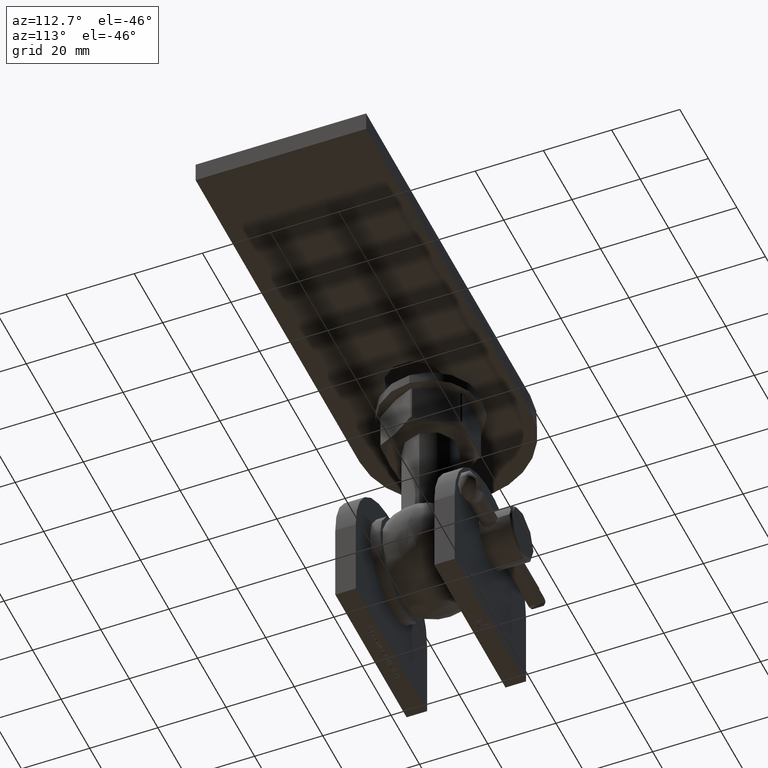
[diagram: clean part render]
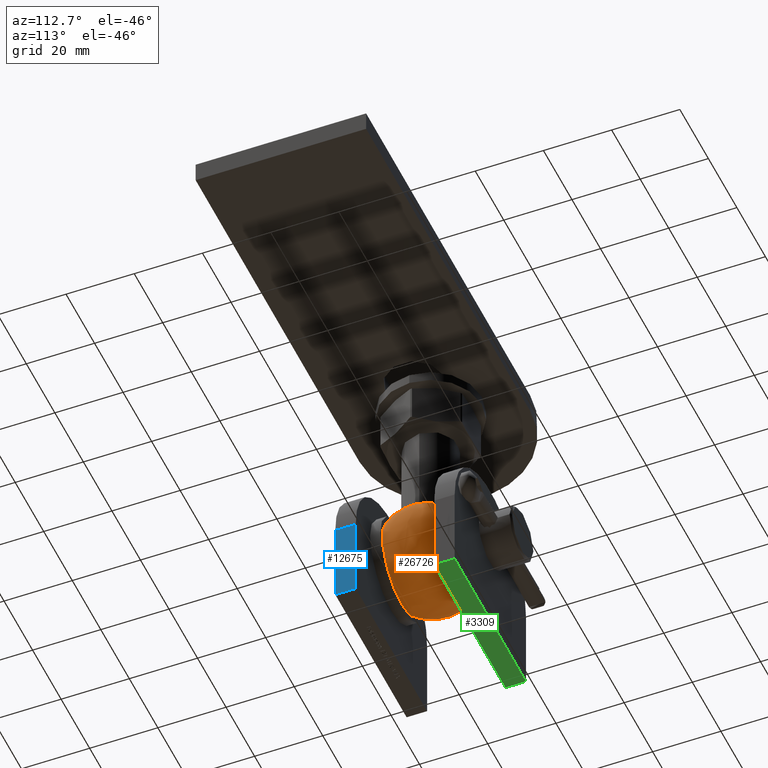
[diagram: same view with three faces highlighted in distinct colors, each labeled with its STEP entity id]
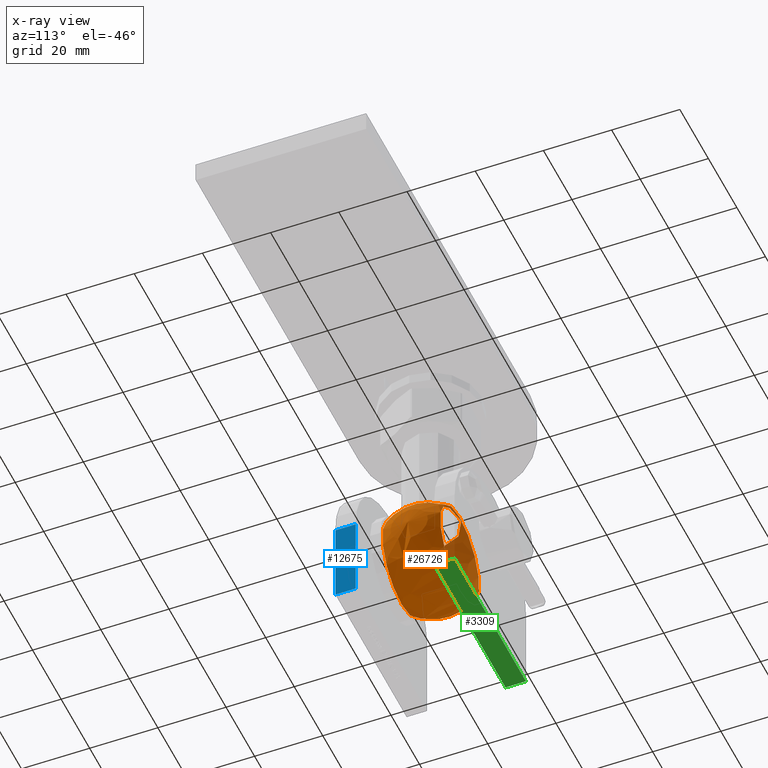
[diagram: x-ray of the same camera — body ghosted, the three highlighted faces saturated]
A machine part, auxiliary view with three faces highlighted in distinct colors.
The next image is the same camera in x-ray (body ghosted, the three faces saturated) — at least one of them is partly hidden behind the body in this view.
Their STEP definitions:

[orange] entity #26726 — the highlighted spherical surface has radius 16 mm.
#252 = VERTEX_POINT ( 'NONE', #3328 ) ;
#600 = CARTESIAN_POINT ( 'NONE',  ( 0.000000000000000000, -8.499999999999998224, 1.799041735802990414E-31 ) ) ;
#658 = ORIENTED_EDGE ( 'NONE', *, *, #8819, .T. ) ;
#2303 = CIRCLE ( 'NONE', #2927, 13.55544171172596002 ) ;
#2785 = EDGE_LOOP ( 'NONE', ( #5837 ) ) ;
#2927 = AXIS2_PLACEMENT_3D ( 'NONE', #600, #11609, #4740 ) ;
#3042 = VERTEX_POINT ( 'NONE', #20824 ) ;
#3194 = FACE_OUTER_BOUND ( 'NONE', #2785, .T. ) ;
#3328 = CARTESIAN_POINT ( 'NONE',  ( 0.000000000000000000, 8.499999999999998224, -13.55544171172595824 ) ) ;
#4607 = EDGE_LOOP ( 'NONE', ( #658 ) ) ;
#4740 = DIRECTION ( 'NONE',  ( 0.000000000000000000, 1.279724787187279111E-16, -1.000000000000000000 ) ) ;
#4808 = DIRECTION ( 'NONE',  ( 1.000000000000000000, -0.000000000000000000, 0.000000000000000000 ) ) ;
#4920 = CIRCLE ( 'NONE', #27511, 13.55544171172596002 ) ;
#4956 = FACE_OUTER_BOUND ( 'NONE', #12788, .T. ) ;
#5837 = ORIENTED_EDGE ( 'NONE', *, *, #6682, .T. ) ;
#6682 = EDGE_CURVE ( 'NONE', #252, #252, #4920, .T. ) ;
#6746 = AXIS2_PLACEMENT_3D ( 'NONE', #27269, #4808, #13795 ) ;
#6945 = DIRECTION ( 'NONE',  ( -1.000000000000000000, 0.000000000000000000, 0.000000000000000000 ) ) ;
#8819 = EDGE_CURVE ( 'NONE', #21605, #21605, #14263, .T. ) ;
#11525 = DIRECTION ( 'NONE',  ( 0.000000000000000000, 0.000000000000000000, -1.000000000000000000 ) ) ;
#11609 = DIRECTION ( 'NONE',  ( -0.000000000000000000, -1.000000000000000000, -1.836970198721029688E-16 ) ) ;
#12788 = EDGE_LOOP ( 'NONE', ( #14800 ) ) ;
#13795 = DIRECTION ( 'NONE',  ( 0.000000000000000000, 1.836970198721029688E-16, -1.000000000000000000 ) ) ;
#14263 = CIRCLE ( 'NONE', #15370, 8.470588235294119528 ) ;
#14395 = SPHERICAL_SURFACE ( 'NONE', #6746, 16.00000000000000000 ) ;
#14800 = ORIENTED_EDGE ( 'NONE', *, *, #22445, .F. ) ;
#15265 = CARTESIAN_POINT ( 'NONE',  ( 0.000000000000000000, 8.499999999999996447, 3.122849337825749828E-15 ) ) ;
#15370 = AXIS2_PLACEMENT_3D ( 'NONE', #24878, #11525, #6945 ) ;
#19373 = DIRECTION ( 'NONE',  ( 0.000000000000000000, 1.279724787187279111E-16, -1.000000000000000000 ) ) ;
#19754 = DIRECTION ( 'NONE',  ( -0.000000000000000000, -1.000000000000000000, -1.836970198721029688E-16 ) ) ;
#20824 = CARTESIAN_POINT ( 'NONE',  ( 0.000000000000000000, -8.499999999999996447, -13.55544171172596002 ) ) ;
#21605 = VERTEX_POINT ( 'NONE', #23164 ) ;
#22445 = EDGE_CURVE ( 'NONE', #3042, #3042, #2303, .T. ) ;
#23164 = CARTESIAN_POINT ( 'NONE',  ( -8.470588235294119528, 0.000000000000000000, 13.57384009586443163 ) ) ;
#23449 = FACE_BOUND ( 'NONE', #4607, .T. ) ;
#24878 = CARTESIAN_POINT ( 'NONE',  ( 0.000000000000000000, 0.000000000000000000, 13.57384009586443163 ) ) ;
#26726 = ADVANCED_FACE ( 'NONE', ( #23449, #3194, #4956 ), #14395, .T. ) ;
#27269 = CARTESIAN_POINT ( 'NONE',  ( 0.000000000000000000, 0.000000000000000000, 0.000000000000000000 ) ) ;
#27511 = AXIS2_PLACEMENT_3D ( 'NONE', #15265, #19754, #19373 ) ;

[blue] entity #12675 — the highlighted planar face has unit normal (-1, 0, 0).
#509 = ORIENTED_EDGE ( 'NONE', *, *, #25339, .T. ) ;
#1470 = PLANE ( 'NONE',  #4926 ) ;
#2612 = ORIENTED_EDGE ( 'NONE', *, *, #14124, .F. ) ;
#2844 = VERTEX_POINT ( 'NONE', #19080 ) ;
#2883 = VECTOR ( 'NONE', #13054, 1000.000000000000000 ) ;
#2921 = VERTEX_POINT ( 'NONE', #13892 ) ;
#3216 = CARTESIAN_POINT ( 'NONE',  ( 25.00000000000000000, -2.999999999999999112, -25.00000000000000711 ) ) ;
#3224 = LINE ( 'NONE', #10829, #2883 ) ;
#3593 = CARTESIAN_POINT ( 'NONE',  ( 25.00000000000000711, -2.999999999999999112, -1.301042606982605321E-14 ) ) ;
#3873 = DIRECTION ( 'NONE',  ( -0.000000000000000000, -1.000000000000000000, -0.000000000000000000 ) ) ;
#4926 = AXIS2_PLACEMENT_3D ( 'NONE', #21703, #10386, #21801 ) ;
#6125 = LINE ( 'NONE', #23234, #10326 ) ;
#10326 = VECTOR ( 'NONE', #27822, 1000.000000000000000 ) ;
#10386 = DIRECTION ( 'NONE',  ( -1.000000000000000000, 0.000000000000000000, 2.775557561562891844E-16 ) ) ;
#10829 = CARTESIAN_POINT ( 'NONE',  ( 25.00000000000000000, -2.999999999999999112, -25.00000000000000711 ) ) ;
#11359 = VECTOR ( 'NONE', #28947, 1000.000000000000000 ) ;
#12675 = ADVANCED_FACE ( 'NONE', ( #17656 ), #1470, .F. ) ;
#12937 = VECTOR ( 'NONE', #3873, 1000.000000000000000 ) ;
#13054 = DIRECTION ( 'NONE',  ( -2.775557561562891844E-16, -0.000000000000000000, -1.000000000000000000 ) ) ;
#13892 = CARTESIAN_POINT ( 'NONE',  ( 25.00000000000000000, 2.999999999999999112, -25.00000000000000711 ) ) ;
#14124 = EDGE_CURVE ( 'NONE', #2921, #27750, #23182, .T. ) ;
#16440 = EDGE_CURVE ( 'NONE', #2844, #24564, #25187, .T. ) ;
#17656 = FACE_OUTER_BOUND ( 'NONE', #21311, .T. ) ;
#19080 = CARTESIAN_POINT ( 'NONE',  ( 25.00000000000000711, 2.999999999999999112, -1.301042606982605321E-14 ) ) ;
#19598 = ORIENTED_EDGE ( 'NONE', *, *, #16440, .T. ) ;
#19613 = CARTESIAN_POINT ( 'NONE',  ( 25.00000000000000711, 2.999999999999999112, -1.301042606982605321E-14 ) ) ;
#21311 = EDGE_LOOP ( 'NONE', ( #509, #2612, #21617, #19598 ) ) ;
#21617 = ORIENTED_EDGE ( 'NONE', *, *, #23192, .F. ) ;
#21703 = CARTESIAN_POINT ( 'NONE',  ( 25.00000000000000000, 2.999999999999999112, -25.00000000000000711 ) ) ;
#21801 = DIRECTION ( 'NONE',  ( 2.775557561562891844E-16, 0.000000000000000000, 1.000000000000000000 ) ) ;
#23182 = LINE ( 'NONE', #24381, #11359 ) ;
#23192 = EDGE_CURVE ( 'NONE', #2844, #2921, #6125, .T. ) ;
#23234 = CARTESIAN_POINT ( 'NONE',  ( 25.00000000000000000, 2.999999999999999112, -25.00000000000000711 ) ) ;
#24381 = CARTESIAN_POINT ( 'NONE',  ( 25.00000000000000000, 2.999999999999999112, -25.00000000000000711 ) ) ;
#24564 = VERTEX_POINT ( 'NONE', #3593 ) ;
#25187 = LINE ( 'NONE', #19613, #12937 ) ;
#25339 = EDGE_CURVE ( 'NONE', #24564, #27750, #3224, .T. ) ;
#27750 = VERTEX_POINT ( 'NONE', #3216 ) ;
#27822 = DIRECTION ( 'NONE',  ( -2.775557561562891844E-16, -0.000000000000000000, -1.000000000000000000 ) ) ;
#28947 = DIRECTION ( 'NONE',  ( -0.000000000000000000, -1.000000000000000000, -0.000000000000000000 ) ) ;

[green] entity #3309 — the highlighted planar face has unit normal (0, 0, 1).
#77 = VERTEX_POINT ( 'NONE', #17323 ) ;
#82 = CARTESIAN_POINT ( 'NONE',  ( 0.8213315327456008896, 1.597911195380323557, -25.00000000000001066 ) ) ;
#167 = CARTESIAN_POINT ( 'NONE',  ( 0.6119098723146358942, 1.102196140564662086, -25.00000000000001066 ) ) ;
#191 = CARTESIAN_POINT ( 'NONE',  ( -0.1512117260546668174, 0.4607502198486854716, -25.00000000000000355 ) ) ;
#263 = CARTESIAN_POINT ( 'NONE',  ( 0.5909100286860287099, 2.072725457703410878, -25.00000000000000711 ) ) ;
#535 = VERTEX_POINT ( 'NONE', #17659 ) ;
#543 = EDGE_CURVE ( 'NONE', #17730, #24065, #4840, .T. ) ;
#621 = CARTESIAN_POINT ( 'NONE',  ( 0.3255386204234207992, 0.1442008315474113678, -25.00000000000000711 ) ) ;
#631 = VECTOR ( 'NONE', #6715, 1000.000000000000000 ) ;
#639 = ORIENTED_EDGE ( 'NONE', *, *, #23360, .T. ) ;
#703 = LINE ( 'NONE', #19130, #13346 ) ;
#706 = EDGE_CURVE ( 'NONE', #10258, #17496, #4115, .T. ) ;
#749 = CARTESIAN_POINT ( 'NONE',  ( 1.092833790849434106, 1.639623803867233054, -25.00000000000000711 ) ) ;
#773 = EDGE_CURVE ( 'NONE', #1811, #3173, #2399, .T. ) ;
#793 = CARTESIAN_POINT ( 'NONE',  ( -0.9528586049474515596, 1.899669447400734068, -25.00000000000000711 ) ) ;
#827 = CARTESIAN_POINT ( 'NONE',  ( 0.3255386204234207992, 0.7554686158533236995, -25.00000000000000711 ) ) ;
#863 = CARTESIAN_POINT ( 'NONE',  ( 0.2207550463272173191, 1.114090589206497617, -25.00000000000000000 ) ) ;
#1005 = CARTESIAN_POINT ( 'NONE',  ( 1.253355793030608512, 1.080365148268019215, -25.00000000000000711 ) ) ;
#1138 = DIRECTION ( 'NONE',  ( -1.000000000000000000, 0.000000000000000000, 0.000000000000000000 ) ) ;
#1143 = CARTESIAN_POINT ( 'NONE',  ( 0.7497409321195667165, 1.984036487154301032, -25.00000000000000000 ) ) ;
#1260 = VERTEX_POINT ( 'NONE', #17909 ) ;
#1344 = CARTESIAN_POINT ( 'NONE',  ( -0.5853340858218472054, -0.6190655233318989037, -25.00000000000000711 ) ) ;
#1493 = CARTESIAN_POINT ( 'NONE',  ( -0.1290596897536649690, -0.9999999999999991118, -25.00000000000000711 ) ) ;
#1532 = CARTESIAN_POINT ( 'NONE',  ( 0.06023582280701196556, 1.580473273315115890, -24.99999999999999645 ) ) ;
#1595 = CARTESIAN_POINT ( 'NONE',  ( -0.3560180584292931272, -0.9768743589762211021, -25.00000000000000000 ) ) ;
#1621 = DIRECTION ( 'NONE',  ( 2.520234260337011195E-15, 1.000000000000000000, -8.064749633078435823E-14 ) ) ;
#1811 = VERTEX_POINT ( 'NONE', #793 ) ;
#1947 = B_SPLINE_CURVE_WITH_KNOTS ( 'NONE', 3,
 ( #5728, #8002, #3831, #6118, #16956, #16855, #3642 ),
 .UNSPECIFIED., .F., .F.,
 ( 4, 1, 1, 1, 4 ),
 ( 0.000000000000000000, 0.2606479079746403804, 0.5118555179677433120, 0.7577454512614898441, 1.000000000000000000 ),
 .UNSPECIFIED. ) ;
#1954 = CARTESIAN_POINT ( 'NONE',  ( 25.00000000000000000, 2.999999999999999112, -25.00000000000000711 ) ) ;
#2219 = B_SPLINE_CURVE_WITH_KNOTS ( 'NONE', 3,
 ( #23789, #3651, #14804, #14903, #17151, #26040, #21651 ),
 .UNSPECIFIED., .F., .F.,
 ( 4, 1, 1, 1, 4 ),
 ( 0.000000000000000000, 0.2749164360065403101, 0.5318693224296920929, 0.7742077911772953236, 1.000000000000000000 ),
 .UNSPECIFIED. ) ;
#2226 = CARTESIAN_POINT ( 'NONE',  ( -0.4282727018193738799, -0.9563380154067203653, -25.00000000000000711 ) ) ;
#2292 = CARTESIAN_POINT ( 'NONE',  ( -0.7678619139327981236, -0.4542752903138828069, -25.00000000000001421 ) ) ;
#2342 = CARTESIAN_POINT ( 'NONE',  ( 0.1829950824865380077, 2.146873330759742959, -25.00000000000000711 ) ) ;
#2399 = LINE ( 'NONE', #19981, #13597 ) ;
#2479 = B_SPLINE_CURVE_WITH_KNOTS ( 'NONE', 3,
 ( #28003, #14541, #3583, #28287, #16894, #1143, #17568 ),
 .UNSPECIFIED., .F., .F.,
 ( 4, 1, 1, 1, 4 ),
 ( 0.000000000000000000, 0.2502307454963305644, 0.4981201228331104680, 0.7465600120008946128, 1.000000000000000000 ),
 .UNSPECIFIED. ) ;
#2630 = CARTESIAN_POINT ( 'NONE',  ( 1.209693808437328988, 1.375083544272657443, -25.00000000000000711 ) ) ;
#2668 = VECTOR ( 'NONE', #17766, 1000.000000000000000 ) ;
#2864 = ORIENTED_EDGE ( 'NONE', *, *, #7486, .T. ) ;
#2892 = CARTESIAN_POINT ( 'NONE',  ( 0.3249149959339862059, 0.8158369231491893192, -25.00000000000000711 ) ) ;
#2950 = B_SPLINE_CURVE_WITH_KNOTS ( 'NONE', 3,
 ( #8440, #10683, #22096, #26290, #4000, #19644, #6294 ),
 .UNSPECIFIED., .F., .F.,
 ( 4, 1, 1, 1, 4 ),
 ( 0.000000000000000000, 0.2663974462967140244, 0.5202005568595408080, 0.7659044003744410745, 1.000000000000000000 ),
 .UNSPECIFIED. ) ;
#2983 = DIRECTION ( 'NONE',  ( 1.000000000000000000, 0.000000000000000000, 0.000000000000000000 ) ) ;
#3004 = LINE ( 'NONE', #5471, #11830 ) ;
#3080 = CARTESIAN_POINT ( 'NONE',  ( -0.4131836336143433486, 1.288401663094823624, -25.00000000000001066 ) ) ;
#3090 = ORIENTED_EDGE ( 'NONE', *, *, #10205, .T. ) ;
#3104 = CARTESIAN_POINT ( 'NONE',  ( -25.00000000000000000, 2.999999999999999112, -25.00000000000000000 ) ) ;
#3106 = EDGE_CURVE ( 'NONE', #24990, #17496, #26817, .T. ) ;
#3173 = VERTEX_POINT ( 'NONE', #3314 ) ;
#3177 = CARTESIAN_POINT ( 'NONE',  ( -0.1512117260546668729, 0.1442008315474113678, -25.00000000000001066 ) ) ;
#3220 = VERTEX_POINT ( 'NONE', #3599 ) ;
#3309 = ADVANCED_FACE ( 'NONE', ( #22628, #27861 ), #23174, .F. ) ;
#3314 = CARTESIAN_POINT ( 'NONE',  ( 0.1829950824865380077, 1.899669447400734068, -25.00000000000000711 ) ) ;
#3448 = LINE ( 'NONE', #11122, #631 ) ;
#3548 = ORIENTED_EDGE ( 'NONE', *, *, #27231, .T. ) ;
#3567 = VECTOR ( 'NONE', #20557, 1000.000000000000000 ) ;
#3578 = CARTESIAN_POINT ( 'NONE',  ( -0.03852201327116638874, 1.596439274536391784, -25.00000000000001776 ) ) ;
#3583 = CARTESIAN_POINT ( 'NONE',  ( 1.018011816031730410, 1.750444312333301777, -25.00000000000000355 ) ) ;
#3599 = CARTESIAN_POINT ( 'NONE',  ( -0.4282727018193738799, -0.9563380154067203653, -25.00000000000000711 ) ) ;
#3607 = B_SPLINE_CURVE_WITH_KNOTS ( 'NONE', 3,
 ( #18172, #11377, #9496, #27065, #9303, #4600, #2630 ),
 .UNSPECIFIED., .F., .F.,
 ( 4, 1, 1, 1, 4 ),
 ( 0.000000000000000000, 0.2514026055896901868, 0.5020703828466516194, 0.7510027753359516112, 1.000000000000000000 ),
 .UNSPECIFIED. ) ;
#3637 = ORIENTED_EDGE ( 'NONE', *, *, #706, .F. ) ;
#3642 = CARTESIAN_POINT ( 'NONE',  ( 0.4385461099589674783, 1.384072776394802640, -25.00000000000000711 ) ) ;
#3651 = CARTESIAN_POINT ( 'NONE',  ( 0.6676109817421589376, 0.7405108014741108580, -25.00000000000000711 ) ) ;
#3654 = CARTESIAN_POINT ( 'NONE',  ( -25.00000000000000000, 2.999999999999999112, -25.00000000000000000 ) ) ;
#3657 = ORIENTED_EDGE ( 'NONE', *, *, #25474, .T. ) ;
#3831 = CARTESIAN_POINT ( 'NONE',  ( 0.5822282991199169144, 1.183035684049527747, -25.00000000000000355 ) ) ;
#3876 = CARTESIAN_POINT ( 'NONE',  ( -0.1571330397346503427, -0.7520254533233770022, -25.00000000000000355 ) ) ;
#3884 = VECTOR ( 'NONE', #12127, 1000.000000000000000 ) ;
#3948 = CARTESIAN_POINT ( 'NONE',  ( 0.1001657293610519611, -0.8763980583204946662, -25.00000000000001066 ) ) ;
#4000 = CARTESIAN_POINT ( 'NONE',  ( -0.02496076300704434120, 1.270485470782682036, -25.00000000000001066 ) ) ;
#4024 = VERTEX_POINT ( 'NONE', #20612 ) ;
#4046 = DIRECTION ( 'NONE',  ( -0.000000000000000000, -1.000000000000000000, -0.000000000000000000 ) ) ;
#4058 = EDGE_CURVE ( 'NONE', #14064, #1260, #21191, .T. ) ;
#4059 = CARTESIAN_POINT ( 'NONE',  ( -0.2549089394637055195, 1.609445667457170437, -25.00000000000000711 ) ) ;
#4115 = LINE ( 'NONE', #3654, #10454 ) ;
#4157 = CARTESIAN_POINT ( 'NONE',  ( -0.2172012704462967791, 1.609020277853021152, -25.00000000000000711 ) ) ;
#4184 = EDGE_CURVE ( 'NONE', #24065, #19707, #3004, .T. ) ;
#4227 = CARTESIAN_POINT ( 'NONE',  ( -0.8168449479676097580, -0.3884662072129990151, -25.00000000000001421 ) ) ;
#4277 = CARTESIAN_POINT ( 'NONE',  ( 0.3239489872340686194, 2.142677532177273747, -25.00000000000002132 ) ) ;
#4353 = VECTOR ( 'NONE', #21700, 1000.000000000000000 ) ;
#4484 = EDGE_LOOP ( 'NONE', ( #6848, #3637, #20110, #3090 ) ) ;
#4492 = CARTESIAN_POINT ( 'NONE',  ( 1.004041235974444835, 1.162718687334054257, -25.00000000000000711 ) ) ;
#4525 = CARTESIAN_POINT ( 'NONE',  ( 0.6386520226417965462, 1.763394067633206053, -25.00000000000000000 ) ) ;
#4539 = CARTESIAN_POINT ( 'NONE',  ( -0.8939359734674556801, -0.2488142571888760646, -25.00000000000000711 ) ) ;
#4600 = CARTESIAN_POINT ( 'NONE',  ( 1.216541039576402028, 1.351212851629326916, -25.00000000000000355 ) ) ;
#4611 = LINE ( 'NONE', #3104, #3884 ) ;
#4683 = EDGE_CURVE ( 'NONE', #12696, #10258, #4611, .T. ) ;
#4686 = CARTESIAN_POINT ( 'NONE',  ( 1.006151909671600064, 1.080365148268019215, -25.00000000000000711 ) ) ;
#4694 = ORIENTED_EDGE ( 'NONE', *, *, #6285, .T. ) ;
#4714 = ORIENTED_EDGE ( 'NONE', *, *, #5111, .T. ) ;
#4718 = CARTESIAN_POINT ( 'NONE',  ( -1.037327673684731666, -0.4970997498849535901, -25.00000000000001421 ) ) ;
#4781 = CARTESIAN_POINT ( 'NONE',  ( 0.9123102406210432669, 1.465329760534601844, -25.00000000000001776 ) ) ;
#4840 = LINE ( 'NONE', #3948, #28954 ) ;
#4899 = DIRECTION ( 'NONE',  ( -0.000000000000000000, -1.000000000000000000, -0.000000000000000000 ) ) ;
#4957 = VERTEX_POINT ( 'NONE', #20017 ) ;
#5080 = ORIENTED_EDGE ( 'NONE', *, *, #21838, .T. ) ;
#5089 = CARTESIAN_POINT ( 'NONE',  ( -25.00000000000000000, 2.999999999999999112, -25.00000000000000000 ) ) ;
#5097 = B_SPLINE_CURVE_WITH_KNOTS ( 'NONE', 3,
 ( #6515, #28735, #2292, #4227, #22128, #4539, #6827, #24673, #13541, #10913, #20074 ),
 .UNSPECIFIED., .F., .F.,
 ( 4, 1, 1, 1, 1, 1, 1, 1, 4 ),
 ( 0.000000000000000000, 0.1306323763146422512, 0.2560617239099421405, 0.3794489883599229119, 0.5019391702453814830, 0.6240267406620521040, 0.7465329994844357442, 0.8718523902103624268, 1.000000000000000000 ),
 .UNSPECIFIED. ) ;
#5111 = EDGE_CURVE ( 'NONE', #3173, #5531, #18315, .T. ) ;
#5167 = CARTESIAN_POINT ( 'NONE',  ( 1.209693808437328988, 1.375083544272657443, -25.00000000000000711 ) ) ;
#5353 = CARTESIAN_POINT ( 'NONE',  ( 0.1536022678564537558, 1.183634553239023335, -25.00000000000000711 ) ) ;
#5366 = CARTESIAN_POINT ( 'NONE',  ( -1.061371478421925474, -0.4580777206363538800, -25.00000000000000711 ) ) ;
#5412 = CARTESIAN_POINT ( 'NONE',  ( -0.6279620725327547115, 0.1442008315474113678, -25.00000000000000711 ) ) ;
#5455 = CARTESIAN_POINT ( 'NONE',  ( 0.04234794806868492911, 1.247695629771193637, -25.00000000000000355 ) ) ;
#5471 = CARTESIAN_POINT ( 'NONE',  ( -0.01444698019630650219, -0.7527961166409885552, -25.00000000000001066 ) ) ;
#5531 = VERTEX_POINT ( 'NONE', #7159 ) ;
#5687 = VERTEX_POINT ( 'NONE', #13532 ) ;
#5712 = VERTEX_POINT ( 'NONE', #18378 ) ;
#5728 = CARTESIAN_POINT ( 'NONE',  ( 0.6119098723146358942, 1.102196140564662086, -25.00000000000001066 ) ) ;
#5785 = CARTESIAN_POINT ( 'NONE',  ( 0.02696769636643663731, 1.253728910623690185, -25.00000000000000711 ) ) ;
#5822 = CARTESIAN_POINT ( 'NONE',  ( -0.1547699390363194427, -0.9995767361195215805, -25.00000000000001066 ) ) ;
#5925 = CARTESIAN_POINT ( 'NONE',  ( -0.1984051946959321799, 1.288401663094823624, -25.00000000000000711 ) ) ;
#6118 = CARTESIAN_POINT ( 'NONE',  ( 0.5413525569560289075, 1.257053745686322666, -25.00000000000000000 ) ) ;
#6154 = CARTESIAN_POINT ( 'NONE',  ( -0.1441828870889620973, 1.608196539287332749, -25.00000000000000000 ) ) ;
#6162 = CARTESIAN_POINT ( 'NONE',  ( -0.2937401839060208020, -0.7394038396070310437, -25.00000000000000711 ) ) ;
#6282 = B_SPLINE_CURVE_WITH_KNOTS ( 'NONE', 3,
 ( #10840, #6747, #13063, #13166, #19697, #17857, #22050 ),
 .UNSPECIFIED., .F., .F.,
 ( 4, 1, 1, 1, 4 ),
 ( 0.000000000000000000, 0.2388456722702002322, 0.4831323380584800486, 0.7357780699317983952, 1.000000000000000000 ),
 .UNSPECIFIED. ) ;
#6285 = EDGE_CURVE ( 'NONE', #77, #14064, #703, .T. ) ;
#6294 = CARTESIAN_POINT ( 'NONE',  ( 0.02696769636643663731, 1.253728910623690185, -25.00000000000000711 ) ) ;
#6515 = CARTESIAN_POINT ( 'NONE',  ( -0.7101493376495161547, -0.5145814654041285241, -25.00000000000000711 ) ) ;
#6566 = B_SPLINE_CURVE_WITH_KNOTS ( 'NONE', 3,
 ( #10507, #8280, #1595, #23868, #28435, #5822, #1493 ),
 .UNSPECIFIED., .F., .F.,
 ( 4, 1, 1, 1, 4 ),
 ( 0.000000000000000000, 0.2473874333444881501, 0.4947477175549523376, 0.7459427166409732246, 1.000000000000000000 ),
 .UNSPECIFIED. ) ;
#6602 = CARTESIAN_POINT ( 'NONE',  ( 0.2908658679522870827, 0.9808415069156930510, -25.00000000000000711 ) ) ;
#6618 = LINE ( 'NONE', #26247, #25115 ) ;
#6666 = VECTOR ( 'NONE', #2983, 1000.000000000000000 ) ;
#6715 = DIRECTION ( 'NONE',  ( -2.042609219063354698E-15, -1.000000000000000000, 1.307269900200547006E-13 ) ) ;
#6747 = CARTESIAN_POINT ( 'NONE',  ( 0.4188917704548371090, 1.402210079860025882, -25.00000000000001776 ) ) ;
#6815 = CARTESIAN_POINT ( 'NONE',  ( 0.1829950824865380077, 1.899669447400734068, -25.00000000000000711 ) ) ;
#6827 = CARTESIAN_POINT ( 'NONE',  ( -0.9201610636526443843, -0.1739119734623356117, -25.00000000000000711 ) ) ;
#6848 = ORIENTED_EDGE ( 'NONE', *, *, #3106, .T. ) ;
#6982 = DIRECTION ( 'NONE',  ( 0.000000000000000000, 1.000000000000000000, -1.166197608812157717E-13 ) ) ;
#7056 = CARTESIAN_POINT ( 'NONE',  ( 25.00000000000000000, -2.999999999999999112, -25.00000000000000711 ) ) ;
#7067 = EDGE_CURVE ( 'NONE', #20923, #26151, #2950, .T. ) ;
#7111 = CARTESIAN_POINT ( 'NONE',  ( -1.167834319195093062, -0.2078385701392675144, -25.00000000000000711 ) ) ;
#7131 = LINE ( 'NONE', #191, #18267 ) ;
#7159 = CARTESIAN_POINT ( 'NONE',  ( 0.7634426423736643263, 1.656960180102799773, -25.00000000000000711 ) ) ;
#7191 = CARTESIAN_POINT ( 'NONE',  ( -0.9021149445339655681, -0.6761491089651485709, -25.00000000000000355 ) ) ;
#7259 = CARTESIAN_POINT ( 'NONE',  ( 0.9608847050565088033, -1.000000000000000888, -25.00000000000000711 ) ) ;
#7279 = VECTOR ( 'NONE', #21111, 1000.000000000000000 ) ;
#7486 = EDGE_CURVE ( 'NONE', #14829, #24541, #8786, .T. ) ;
#7512 = EDGE_CURVE ( 'NONE', #28124, #20923, #24837, .T. ) ;
#7599 = EDGE_CURVE ( 'NONE', #22809, #14336, #15718, .T. ) ;
#7628 = CARTESIAN_POINT ( 'NONE',  ( 1.092833790849434106, 1.639623803867233054, -25.00000000000000711 ) ) ;
#7683 = CARTESIAN_POINT ( 'NONE',  ( -25.00000000000000000, 2.999999999999999112, -25.00000000000000000 ) ) ;
#7686 = CARTESIAN_POINT ( 'NONE',  ( 0.1001657293610519472, -0.7527961166409903315, -25.00000000000000711 ) ) ;
#7722 = CARTESIAN_POINT ( 'NONE',  ( 0.1758084337862751978, 1.160975146168967465, -25.00000000000001066 ) ) ;
#7744 = VECTOR ( 'NONE', #11952, 1000.000000000000000 ) ;
#7952 = CARTESIAN_POINT ( 'NONE',  ( -0.9528586049474515596, 0.06650818249172296692, -25.00000000000000711 ) ) ;
#8002 = CARTESIAN_POINT ( 'NONE',  ( 0.6018951077209877543, 1.129471952144720737, -25.00000000000000711 ) ) ;
#8063 = ORIENTED_EDGE ( 'NONE', *, *, #17286, .T. ) ;
#8280 = CARTESIAN_POINT ( 'NONE',  ( -0.4041869396049987406, -0.9631837136865815108, -25.00000000000001421 ) ) ;
#8440 = CARTESIAN_POINT ( 'NONE',  ( -0.1984051946959321799, 1.288401663094823624, -25.00000000000000711 ) ) ;
#8549 = EDGE_CURVE ( 'NONE', #4024, #20273, #2219, .T. ) ;
#8597 = CARTESIAN_POINT ( 'NONE',  ( -0.6722406479888848319, -0.8520168062256406882, -25.00000000000001776 ) ) ;
#8599 = CARTESIAN_POINT ( 'NONE',  ( -0.6279620725327548225, 1.448923665275998696, -25.00000000000001066 ) ) ;
#8674 = DIRECTION ( 'NONE',  ( 1.000000000000000000, -1.039111971954342069E-13, 0.000000000000000000 ) ) ;
#8786 = B_SPLINE_CURVE_WITH_KNOTS ( 'NONE', 3,
 ( #5167, #23024, #25192, #12009, #25379, #20216, #7628 ),
 .UNSPECIFIED., .F., .F.,
 ( 4, 1, 1, 1, 4 ),
 ( 0.000000000000000000, 0.2525737193840794648, 0.5047887723702162432, 0.7511246564246798485, 1.000000000000000000 ),
 .UNSPECIFIED. ) ;
#8841 = ORIENTED_EDGE ( 'NONE', *, *, #22553, .T. ) ;
#8981 = ORIENTED_EDGE ( 'NONE', *, *, #7067, .T. ) ;
#9049 = CARTESIAN_POINT ( 'NONE',  ( 0.2662102122210362465, 1.897639259368453457, -25.00000000000000711 ) ) ;
#9166 = DIRECTION ( 'NONE',  ( 2.002241447935755430E-15, 1.000000000000000000, -6.407172633394417377E-14 ) ) ;
#9289 = ORIENTED_EDGE ( 'NONE', *, *, #773, .T. ) ;
#9303 = CARTESIAN_POINT ( 'NONE',  ( 1.230233719019874439, 1.303477681628476770, -25.00000000000001421 ) ) ;
#9331 = CARTESIAN_POINT ( 'NONE',  ( 0.2110795414425858108, 1.898984274732645749, -25.00000000000001066 ) ) ;
#9424 = CARTESIAN_POINT ( 'NONE',  ( 0.7043450175727454798, 1.715061772700549714, -25.00000000000001776 ) ) ;
#9429 = CARTESIAN_POINT ( 'NONE',  ( -0.6928129614139492132, -0.8394779978188240399, -25.00000000000000711 ) ) ;
#9496 = CARTESIAN_POINT ( 'NONE',  ( 1.252073697089931548, 1.155497755103599644, -25.00000000000000711 ) ) ;
#9530 = ORIENTED_EDGE ( 'NONE', *, *, #4058, .T. ) ;
#9579 = CARTESIAN_POINT ( 'NONE',  ( 0.2964310480308920970, 0.9638260719613163108, -25.00000000000000000 ) ) ;
#9674 = CARTESIAN_POINT ( 'NONE',  ( 0.1868476105388861275, 1.149710653210289646, -25.00000000000001066 ) ) ;
#9712 = VERTEX_POINT ( 'NONE', #21648 ) ;
#9801 = DIRECTION ( 'NONE',  ( -1.000000000000000000, 0.000000000000000000, 0.000000000000000000 ) ) ;
#9910 = CARTESIAN_POINT ( 'NONE',  ( 0.3255386204234207992, 0.7554686158533236995, -25.00000000000000711 ) ) ;
#9937 = CARTESIAN_POINT ( 'NONE',  ( -25.00000000000000000, -2.999999999999999112, -25.00000000000000000 ) ) ;
#9986 = B_SPLINE_CURVE_WITH_KNOTS ( 'NONE', 3,
 ( #9994, #27930, #863, #18872, #25415, #27843, #14466 ),
 .UNSPECIFIED., .F., .F.,
 ( 4, 1, 1, 1, 4 ),
 ( 0.000000000000000000, 0.2455891591026241050, 0.4905057002791307075, 0.7406289399192079737, 0.9999999999999998890 ),
 .UNSPECIFIED. ) ;
#9994 = CARTESIAN_POINT ( 'NONE',  ( 0.1868476105388861275, 1.149710653210289646, -25.00000000000001066 ) ) ;
#10013 = DIRECTION ( 'NONE',  ( 1.387778780781445429E-16, -0.000000000000000000, 1.000000000000000000 ) ) ;
#10069 = ORIENTED_EDGE ( 'NONE', *, *, #20940, .T. ) ;
#10194 = CARTESIAN_POINT ( 'NONE',  ( 0.3255386204234207992, -0.7527961166409903315, -25.00000000000000711 ) ) ;
#10205 = EDGE_CURVE ( 'NONE', #12696, #24990, #15292, .T. ) ;
#10258 = VERTEX_POINT ( 'NONE', #5089 ) ;
#10282 = ORIENTED_EDGE ( 'NONE', *, *, #28276, .T. ) ;
#10338 = VERTEX_POINT ( 'NONE', #25124 ) ;
#10378 = VECTOR ( 'NONE', #14463, 1000.000000000000000 ) ;
#10454 = VECTOR ( 'NONE', #4046, 1000.000000000000000 ) ;
#10507 = CARTESIAN_POINT ( 'NONE',  ( -0.4282727018193738799, -0.9563380154067203653, -25.00000000000000711 ) ) ;
#10512 = VECTOR ( 'NONE', #6982, 1000.000000000000000 ) ;
#10531 = DIRECTION ( 'NONE',  ( -3.517826988386977415E-15, -1.000000000000000000, 2.251409272567665545E-13 ) ) ;
#10555 = CARTESIAN_POINT ( 'NONE',  ( -0.1290596897536649690, -0.7527961166409903315, -25.00000000000000711 ) ) ;
#10660 = VERTEX_POINT ( 'NONE', #5366 ) ;
#10683 = CARTESIAN_POINT ( 'NONE',  ( -0.1780515500803924733, 1.288109399636038654, -25.00000000000001066 ) ) ;
#10840 = CARTESIAN_POINT ( 'NONE',  ( 0.4385461099589674783, 1.384072776394802640, -25.00000000000000711 ) ) ;
#10895 = ORIENTED_EDGE ( 'NONE', *, *, #7599, .T. ) ;
#10913 = CARTESIAN_POINT ( 'NONE',  ( -0.9521475373961714173, 0.03885511722638915200, -25.00000000000001776 ) ) ;
#10953 = EDGE_CURVE ( 'NONE', #21181, #22055, #15983, .T. ) ;
#10971 = VERTEX_POINT ( 'NONE', #24001 ) ;
#11086 = VECTOR ( 'NONE', #23952, 1000.000000000000000 ) ;
#11122 = CARTESIAN_POINT ( 'NONE',  ( 0.3255386204234208547, -0.3042976425467903145, -25.00000000000001066 ) ) ;
#11313 = LINE ( 'NONE', #16071, #3567 ) ;
#11377 = CARTESIAN_POINT ( 'NONE',  ( 1.252928010926871671, 1.105433775031146260, -25.00000000000000711 ) ) ;
#11387 = VECTOR ( 'NONE', #13375, 1000.000000000000000 ) ;
#11394 = EDGE_CURVE ( 'NONE', #20273, #13982, #1947, .T. ) ;
#11531 = ORIENTED_EDGE ( 'NONE', *, *, #8549, .T. ) ;
#11825 = CARTESIAN_POINT ( 'NONE',  ( 0.3253282482575404200, 0.7758331329169119162, -25.00000000000000711 ) ) ;
#11830 = VECTOR ( 'NONE', #1138, 1000.000000000000000 ) ;
#11952 = DIRECTION ( 'NONE',  ( -1.000000000000000000, 4.052536690621513184E-12, 0.000000000000000000 ) ) ;
#12009 = CARTESIAN_POINT ( 'NONE',  ( 1.161899198917757614, 1.512953803745775705, -25.00000000000001776 ) ) ;
#12127 = DIRECTION ( 'NONE',  ( -1.000000000000000000, -0.000000000000000000, 1.387778780781445676E-16 ) ) ;
#12359 = EDGE_CURVE ( 'NONE', #13257, #3220, #16333, .T. ) ;
#12452 = DIRECTION ( 'NONE',  ( 1.000000000000000000, 0.000000000000000000, -1.387778780781445429E-16 ) ) ;
#12454 = CARTESIAN_POINT ( 'NONE',  ( 0.3255386204234208547, 0.6081094178510062509, -25.00000000000001066 ) ) ;
#12458 = VECTOR ( 'NONE', #27613, 1000.000000000000000 ) ;
#12575 = VERTEX_POINT ( 'NONE', #1005 ) ;
#12696 = VERTEX_POINT ( 'NONE', #17399 ) ;
#12806 = B_SPLINE_CURVE_WITH_KNOTS ( 'NONE', 3,
 ( #17684, #15542, #263, #15929, #4277, #26760, #2342 ),
 .UNSPECIFIED., .F., .F.,
 ( 4, 1, 1, 1, 4 ),
 ( 0.000000000000000000, 0.2478826274969460619, 0.4929796761389063087, 0.7427507537512861857, 1.000000000000000000 ),
 .UNSPECIFIED. ) ;
#12857 = DIRECTION ( 'NONE',  ( 0.000000000000000000, 1.000000000000000000, -2.251409272567665545E-13 ) ) ;
#12886 = CARTESIAN_POINT ( 'NONE',  ( -0.5177405628720664899, -0.6610987325628998601, -25.00000000000000711 ) ) ;
#12892 = EDGE_CURVE ( 'NONE', #23066, #27619, #18339, .T. ) ;
#13020 = ORIENTED_EDGE ( 'NONE', *, *, #28834, .T. ) ;
#13063 = CARTESIAN_POINT ( 'NONE',  ( 0.3791353582604243266, 1.438897861329703431, -25.00000000000001066 ) ) ;
#13166 = CARTESIAN_POINT ( 'NONE',  ( 0.3099072390660078113, 1.483799487249148230, -25.00000000000001421 ) ) ;
#13257 = VERTEX_POINT ( 'NONE', #16801 ) ;
#13334 = VERTEX_POINT ( 'NONE', #19150 ) ;
#13346 = VECTOR ( 'NONE', #10531, 1000.000000000000000 ) ;
#13375 = DIRECTION ( 'NONE',  ( 5.332285119239138733E-15, -1.000000000000000000, 1.706331238156524395E-13 ) ) ;
#13503 = CARTESIAN_POINT ( 'NONE',  ( 0.9462483770636027636, 1.394094985468285364, -25.00000000000000000 ) ) ;
#13518 = EDGE_CURVE ( 'NONE', #22055, #28124, #19034, .T. ) ;
#13532 = CARTESIAN_POINT ( 'NONE',  ( -1.200062488306459896, 2.146873330759742959, -25.00000000000000711 ) ) ;
#13541 = CARTESIAN_POINT ( 'NONE',  ( -0.9507410955617680015, -0.01584070986997317132, -25.00000000000001066 ) ) ;
#13597 = VECTOR ( 'NONE', #8674, 1000.000000000000000 ) ;
#13622 = CARTESIAN_POINT ( 'NONE',  ( 0.7634426423736643263, 1.656960180102799773, -25.00000000000000711 ) ) ;
#13713 = CARTESIAN_POINT ( 'NONE',  ( 0.7435510716376358964, 1.676516498024669621, -25.00000000000000711 ) ) ;
#13787 = VERTEX_POINT ( 'NONE', #621 ) ;
#13801 = CARTESIAN_POINT ( 'NONE',  ( 0.4249934534909589057, 1.867224173358623229, -25.00000000000001066 ) ) ;
#13814 = CARTESIAN_POINT ( 'NONE',  ( -1.082987653338100209, -0.4179753618689455164, -25.00000000000000355 ) ) ;
#13965 = CARTESIAN_POINT ( 'NONE',  ( 1.209693808437328988, 1.375083544272657443, -25.00000000000000711 ) ) ;
#13982 = VERTEX_POINT ( 'NONE', #21646 ) ;
#14003 = EDGE_CURVE ( 'NONE', #5687, #13334, #28413, .T. ) ;
#14064 = VERTEX_POINT ( 'NONE', #24484 ) ;
#14078 = CARTESIAN_POINT ( 'NONE',  ( -0.9899904923460790540, -0.5739258967836484704, -25.00000000000001066 ) ) ;
#14200 = LINE ( 'NONE', #3177, #12458 ) ;
#14251 = EDGE_CURVE ( 'NONE', #13334, #10660, #18199, .T. ) ;
#14336 = VERTEX_POINT ( 'NONE', #9910 ) ;
#14420 = ORIENTED_EDGE ( 'NONE', *, *, #12359, .T. ) ;
#14427 = CARTESIAN_POINT ( 'NONE',  ( 0.07265253163727614094, 1.235807913800953450, -25.00000000000000355 ) ) ;
#14463 = DIRECTION ( 'NONE',  ( 1.000000000000000000, 0.000000000000000000, 4.987737465380828805E-13 ) ) ;
#14466 = CARTESIAN_POINT ( 'NONE',  ( 0.2908658679522870827, 0.9808415069156930510, -25.00000000000000711 ) ) ;
#14541 = CARTESIAN_POINT ( 'NONE',  ( 1.067815100646084980, 1.676679548202306913, -25.00000000000000355 ) ) ;
#14654 = CARTESIAN_POINT ( 'NONE',  ( 0.6684136170824092060, -0.7527961166409903315, -25.00000000000000711 ) ) ;
#14802 = ORIENTED_EDGE ( 'NONE', *, *, #27561, .T. ) ;
#14804 = CARTESIAN_POINT ( 'NONE',  ( 0.6660581567427582561, 0.8121924285632332596, -25.00000000000000711 ) ) ;
#14829 = VERTEX_POINT ( 'NONE', #13965 ) ;
#14903 = CARTESIAN_POINT ( 'NONE',  ( 0.6559270745477943088, 0.9161385527616215940, -24.99999999999999645 ) ) ;
#14924 = CARTESIAN_POINT ( 'NONE',  ( 0.1221490211206742726, 1.561933227008358127, -25.00000000000000355 ) ) ;
#14947 = EDGE_CURVE ( 'NONE', #5712, #5687, #28384, .T. ) ;
#15021 = CARTESIAN_POINT ( 'NONE',  ( -0.4414355059982301155, 1.609445667457173990, -25.00000000000001066 ) ) ;
#15071 = EDGE_CURVE ( 'NONE', #15197, #21181, #23057, .T. ) ;
#15129 = CARTESIAN_POINT ( 'NONE',  ( -0.6902256829882172928, -0.5336832719200022002, -25.00000000000000711 ) ) ;
#15197 = VERTEX_POINT ( 'NONE', #24097 ) ;
#15206 = ORIENTED_EDGE ( 'NONE', *, *, #20180, .T. ) ;
#15292 = LINE ( 'NONE', #1954, #22279 ) ;
#15441 = CARTESIAN_POINT ( 'NONE',  ( 1.253355793030608289, 0.04018257413400914968, -25.00000000000000711 ) ) ;
#15450 = VERTEX_POINT ( 'NONE', #5412 ) ;
#15474 = CARTESIAN_POINT ( 'NONE',  ( -0.6279620725327548225, 1.609445667457173990, -25.00000000000001066 ) ) ;
#15535 = B_SPLINE_CURVE_WITH_KNOTS ( 'NONE', 3,
 ( #20877, #5455, #14427, #23117, #5353, #7722, #9674 ),
 .UNSPECIFIED., .F., .F.,
 ( 4, 1, 1, 1, 4 ),
 ( 0.000000000000000000, 0.2570737214321338060, 0.5065269558163344454, 0.7546836237012545245, 0.9999999999999998890 ),
 .UNSPECIFIED. ) ;
#15542 = CARTESIAN_POINT ( 'NONE',  ( 0.6711079660104760647, 2.029777592041457357, -25.00000000000000711 ) ) ;
#15584 = VERTEX_POINT ( 'NONE', #10194 ) ;
#15699 = ORIENTED_EDGE ( 'NONE', *, *, #10953, .T. ) ;
#15718 = B_SPLINE_CURVE_WITH_KNOTS ( 'NONE', 3,
 ( #16296, #9579, #23219, #27616, #2892, #11825, #827 ),
 .UNSPECIFIED., .F., .F.,
 ( 4, 1, 1, 1, 4 ),
 ( 0.000000000000000000, 0.2341368012037809143, 0.4766002465572252711, 0.7335556668961965565, 1.000000000000000000 ),
 .UNSPECIFIED. ) ;
#15818 = EDGE_LOOP ( 'NONE', ( #15206, #26572, #15917, #16765, #27007, #14420, #10069, #17438, #18721, #23093, #639, #13020, #3657, #9289, #4714, #28880, #3548, #24639, #10282, #11531, #25428, #27329, #17620, #15699, #22803, #18826, #8981, #5080, #22675, #10895, #8841, #18202, #22926, #28278, #27869, #14802, #4694, #9530, #16394, #8063, #2864, #28198 ) ) ;
#15917 = ORIENTED_EDGE ( 'NONE', *, *, #14003, .T. ) ;
#15929 = CARTESIAN_POINT ( 'NONE',  ( 0.4601743299141767829, 2.114863343492454639, -24.99999999999999289 ) ) ;
#15983 = LINE ( 'NONE', #15021, #2668 ) ;
#16071 = CARTESIAN_POINT ( 'NONE',  ( -0.6279620725327544895, 0.3024755256980475870, -24.99999999999999645 ) ) ;
#16147 = CARTESIAN_POINT ( 'NONE',  ( -1.198649710938255453, 0.01970210213363306206, -25.00000000000000711 ) ) ;
#16206 = DIRECTION ( 'NONE',  ( 1.000000000000000000, -1.000626343363444508E-13, 2.001252686726889016E-13 ) ) ;
#16273 = LINE ( 'NONE', #20914, #10378 ) ;
#16296 = CARTESIAN_POINT ( 'NONE',  ( 0.2908658679522870827, 0.9808415069156930510, -25.00000000000000711 ) ) ;
#16333 = B_SPLINE_CURVE_WITH_KNOTS ( 'NONE', 3,
 ( #20106, #8597, #24200, #28871, #17769, #28974, #2226 ),
 .UNSPECIFIED., .F., .F.,
 ( 4, 1, 1, 1, 4 ),
 ( 0.000000000000000000, 0.2488753435753184307, 0.4952112276297854221, 0.7474262806159159833, 1.000000000000000000 ),
 .UNSPECIFIED. ) ;
#16355 = EDGE_CURVE ( 'NONE', #24541, #4957, #2479, .T. ) ;
#16394 = ORIENTED_EDGE ( 'NONE', *, *, #27969, .T. ) ;
#16397 = DIRECTION ( 'NONE',  ( -1.000000000000000000, 0.000000000000000000, 8.531656190783019559E-14 ) ) ;
#16729 = B_SPLINE_CURVE_WITH_KNOTS ( 'NONE', 3,
 ( #22370, #18075, #82, #22564, #4781, #13503, #20227, #20426, #4492, #24922, #4686 ),
 .UNSPECIFIED., .F., .F.,
 ( 4, 1, 1, 1, 1, 1, 1, 1, 4 ),
 ( 0.000000000000000000, 0.1299541017781144225, 0.2553417738978008278, 0.3786214011607271779, 0.5005149294441261221, 0.6227350536060302089, 0.7450081672021061641, 0.8710814669268074351, 1.000000000000000000 ),
 .UNSPECIFIED. ) ;
#16765 = ORIENTED_EDGE ( 'NONE', *, *, #14251, .T. ) ;
#16801 = CARTESIAN_POINT ( 'NONE',  ( -0.6928129614139492132, -0.8394779978188240399, -25.00000000000000711 ) ) ;
#16855 = CARTESIAN_POINT ( 'NONE',  ( 0.4573497116723221900, 1.364673421401854547, -25.00000000000000355 ) ) ;
#16856 = DIRECTION ( 'NONE',  ( 0.000000000000000000, -1.000000000000000000, 6.407172633394212904E-14 ) ) ;
#16894 = CARTESIAN_POINT ( 'NONE',  ( 0.8256000047914008322, 1.936221191085142568, -25.00000000000000355 ) ) ;
#16956 = CARTESIAN_POINT ( 'NONE',  ( 0.4952390907015435939, 1.325583595662344072, -25.00000000000000711 ) ) ;
#16994 = LINE ( 'NONE', #12454, #11086 ) ;
#17005 = CARTESIAN_POINT ( 'NONE',  ( -0.4461150426222769139, -0.6940577471852906744, -25.00000000000001066 ) ) ;
#17058 = DIRECTION ( 'NONE',  ( 0.000000000000000000, -1.000000000000000000, 1.166197608812157717E-13 ) ) ;
#17151 = CARTESIAN_POINT ( 'NONE',  ( 0.6384982870824761347, 1.012481265790614371, -25.00000000000001421 ) ) ;
#17202 = VECTOR ( 'NONE', #9166, 1000.000000000000000 ) ;
#17286 = EDGE_CURVE ( 'NONE', #12575, #14829, #3607, .T. ) ;
#17323 = CARTESIAN_POINT ( 'NONE',  ( 0.3216860923710725961, -0.7527961166409903315, -25.00000000000000711 ) ) ;
#17333 = CARTESIAN_POINT ( 'NONE',  ( -1.200062488306459674, 1.106690756625729577, -24.99999999999999645 ) ) ;
#17399 = CARTESIAN_POINT ( 'NONE',  ( 25.00000000000000000, 2.999999999999999112, -25.00000000000000711 ) ) ;
#17438 = ORIENTED_EDGE ( 'NONE', *, *, #21411, .T. ) ;
#17496 = VERTEX_POINT ( 'NONE', #9937 ) ;
#17568 = CARTESIAN_POINT ( 'NONE',  ( 0.7114335136669639459, 2.008182320875209204, -25.00000000000001066 ) ) ;
#17620 = ORIENTED_EDGE ( 'NONE', *, *, #15071, .T. ) ;
#17659 = CARTESIAN_POINT ( 'NONE',  ( 0.1868476105388861275, 1.149710653210289646, -25.00000000000001066 ) ) ;
#17684 = CARTESIAN_POINT ( 'NONE',  ( 0.7114335136669639459, 2.008182320875209204, -25.00000000000001066 ) ) ;
#17730 = VERTEX_POINT ( 'NONE', #24061 ) ;
#17766 = DIRECTION ( 'NONE',  ( -1.000000000000000000, -1.473649705680702908E-13, 1.473649705680702908E-13 ) ) ;
#17769 = CARTESIAN_POINT ( 'NONE',  ( -0.4985969908497550063, -0.9356130478488100533, -25.00000000000000355 ) ) ;
#17838 = EDGE_CURVE ( 'NONE', #13787, #15584, #3448, .T. ) ;
#17857 = CARTESIAN_POINT ( 'NONE',  ( 0.1800939689043047076, 1.543170731474120760, -25.00000000000000711 ) ) ;
#17909 = CARTESIAN_POINT ( 'NONE',  ( 1.253355793030608512, -0.9999999999999991118, -25.00000000000000711 ) ) ;
#17917 = EDGE_CURVE ( 'NONE', #10660, #13257, #25891, .T. ) ;
#17926 = CARTESIAN_POINT ( 'NONE',  ( 0.5708785114930344795, 1.805851700902295187, -25.00000000000001776 ) ) ;
#18075 = CARTESIAN_POINT ( 'NONE',  ( 0.7829676340129325673, 1.637043907298015633, -25.00000000000000711 ) ) ;
#18151 = VERTEX_POINT ( 'NONE', #21512 ) ;
#18172 = CARTESIAN_POINT ( 'NONE',  ( 1.253355793030608512, 1.080365148268019215, -25.00000000000000711 ) ) ;
#18199 = B_SPLINE_CURVE_WITH_KNOTS ( 'NONE', 3,
 ( #20372, #16147, #20468, #7111, #27199, #13814, #18298 ),
 .UNSPECIFIED., .F., .F.,
 ( 4, 1, 1, 1, 4 ),
 ( 0.000000000000000000, 0.2555069489946569794, 0.5046917175512054543, 0.7514670339421781753, 1.000000000000000000 ),
 .UNSPECIFIED. ) ;
#18202 = ORIENTED_EDGE ( 'NONE', *, *, #25922, .T. ) ;
#18267 = VECTOR ( 'NONE', #9801, 1000.000000000000000 ) ;
#18298 = CARTESIAN_POINT ( 'NONE',  ( -1.061371478421925474, -0.4580777206363538800, -25.00000000000000711 ) ) ;
#18315 = B_SPLINE_CURVE_WITH_KNOTS ( 'NONE', 3,
 ( #6815, #9331, #9049, #27183, #13801, #20537, #17926, #4525, #9424, #13713, #13622 ),
 .UNSPECIFIED., .F., .F.,
 ( 4, 1, 1, 1, 1, 1, 1, 1, 4 ),
 ( 0.000000000000000000, 0.1301676365660977275, 0.2555231392837346571, 0.3790297504302651554, 0.5002170846485127775, 0.6227425632618531770, 0.7453202992625214129, 0.8707857905346628735, 1.000000000000000000 ),
 .UNSPECIFIED. ) ;
#18337 = VERTEX_POINT ( 'NONE', #20135 ) ;
#18339 = LINE ( 'NONE', #21515, #4353 ) ;
#18351 = CARTESIAN_POINT ( 'NONE',  ( -0.6279620725327547115, 1.288401663094823624, -25.00000000000000711 ) ) ;
#18378 = CARTESIAN_POINT ( 'NONE',  ( 0.1829950824865380077, 2.146873330759742959, -25.00000000000000711 ) ) ;
#18393 = EDGE_CURVE ( 'NONE', #5531, #18151, #16729, .T. ) ;
#18661 = CARTESIAN_POINT ( 'NONE',  ( -0.1290596897536649690, -0.7527961166409903315, -25.00000000000000711 ) ) ;
#18721 = ORIENTED_EDGE ( 'NONE', *, *, #543, .T. ) ;
#18799 = EDGE_CURVE ( 'NONE', #13982, #15197, #6282, .T. ) ;
#18826 = ORIENTED_EDGE ( 'NONE', *, *, #7512, .T. ) ;
#18872 = CARTESIAN_POINT ( 'NONE',  ( 0.2476921176872734776, 1.072550749330589248, -25.00000000000001421 ) ) ;
#18974 = VECTOR ( 'NONE', #16397, 1000.000000000000000 ) ;
#19034 = LINE ( 'NONE', #8599, #11387 ) ;
#19130 = CARTESIAN_POINT ( 'NONE',  ( 0.3216860923710726516, -0.8763980583204946662, -25.00000000000001066 ) ) ;
#19150 = CARTESIAN_POINT ( 'NONE',  ( -1.200062488306460118, 0.06650818249172470165, -25.00000000000001066 ) ) ;
#19437 = AXIS2_PLACEMENT_3D ( 'NONE', #7683, #10013, #12452 ) ;
#19528 = CARTESIAN_POINT ( 'NONE',  ( -0.2124243608243137904, -0.7505076083574192536, -25.00000000000000711 ) ) ;
#19644 = CARTESIAN_POINT ( 'NONE',  ( 0.009939669686819030403, 1.259223607691317692, -25.00000000000000711 ) ) ;
#19697 = CARTESIAN_POINT ( 'NONE',  ( 0.2347089871877982847, 1.524056448429851551, -25.00000000000000355 ) ) ;
#19707 = VERTEX_POINT ( 'NONE', #18661 ) ;
#19781 = VERTEX_POINT ( 'NONE', #7952 ) ;
#19789 = VECTOR ( 'NONE', #16206, 1000.000000000000000 ) ;
#19981 = CARTESIAN_POINT ( 'NONE',  ( -0.3849317612304568592, 1.899669447400737621, -25.00000000000001066 ) ) ;
#20017 = CARTESIAN_POINT ( 'NONE',  ( 0.7114335136669639459, 2.008182320875209204, -25.00000000000001066 ) ) ;
#20074 = CARTESIAN_POINT ( 'NONE',  ( -0.9528586049474515596, 0.06650818249172296692, -25.00000000000000711 ) ) ;
#20106 = CARTESIAN_POINT ( 'NONE',  ( -0.6928129614139492132, -0.8394779978188240399, -25.00000000000000711 ) ) ;
#20110 = ORIENTED_EDGE ( 'NONE', *, *, #4683, .F. ) ;
#20135 = CARTESIAN_POINT ( 'NONE',  ( -0.6279620725327547115, 0.4607502198486872480, -25.00000000000000711 ) ) ;
#20180 = EDGE_CURVE ( 'NONE', #4957, #5712, #12806, .T. ) ;
#20216 = CARTESIAN_POINT ( 'NONE',  ( 1.105372599256252863, 1.619051490442162455, -25.00000000000000355 ) ) ;
#20227 = CARTESIAN_POINT ( 'NONE',  ( 0.9736846733564004097, 1.320321164367994182, -25.00000000000000711 ) ) ;
#20273 = VERTEX_POINT ( 'NONE', #167 ) ;
#20372 = CARTESIAN_POINT ( 'NONE',  ( -1.200062488306460118, 0.06650818249172470165, -25.00000000000001066 ) ) ;
#20426 = CARTESIAN_POINT ( 'NONE',  ( 0.9919754736573138665, 1.242868053414131868, -25.00000000000002487 ) ) ;
#20468 = CARTESIAN_POINT ( 'NONE',  ( -1.195859113503304316, -0.07275190422788117839, -25.00000000000000711 ) ) ;
#20537 = CARTESIAN_POINT ( 'NONE',  ( 0.4997358604918895053, 1.840545774220655240, -25.00000000000000000 ) ) ;
#20543 = CARTESIAN_POINT ( 'NONE',  ( -0.8041709659580210667, -0.7666962251610277557, -25.00000000000000000 ) ) ;
#20557 = DIRECTION ( 'NONE',  ( 5.506163981822799981E-15, -1.000000000000000000, 0.000000000000000000 ) ) ;
#20612 = CARTESIAN_POINT ( 'NONE',  ( 0.6684136170824092060, 0.7034594871466234300, -25.00000000000000711 ) ) ;
#20877 = CARTESIAN_POINT ( 'NONE',  ( 0.02696769636643663731, 1.253728910623690185, -25.00000000000000711 ) ) ;
#20914 = CARTESIAN_POINT ( 'NONE',  ( -0.01444698019630652648, -0.9999999999999974465, -25.00000000000001066 ) ) ;
#20923 = VERTEX_POINT ( 'NONE', #5925 ) ;
#20940 = EDGE_CURVE ( 'NONE', #3220, #10971, #6566, .T. ) ;
#21003 = LINE ( 'NONE', #15441, #10512 ) ;
#21111 = DIRECTION ( 'NONE',  ( -1.000000000000000000, -0.000000000000000000, 1.387778780781445676E-16 ) ) ;
#21181 = VERTEX_POINT ( 'NONE', #27091 ) ;
#21191 = LINE ( 'NONE', #7259, #19789 ) ;
#21253 = CARTESIAN_POINT ( 'NONE',  ( 1.006151909671600064, 0.1637845158135118329, -25.00000000000000355 ) ) ;
#21405 = CARTESIAN_POINT ( 'NONE',  ( -25.00000000000000000, -2.999999999999999112, -25.00000000000000000 ) ) ;
#21411 = EDGE_CURVE ( 'NONE', #10971, #17730, #16273, .T. ) ;
#21472 = VECTOR ( 'NONE', #17058, 1000.000000000000000 ) ;
#21512 = CARTESIAN_POINT ( 'NONE',  ( 1.006151909671600064, 1.080365148268019215, -25.00000000000000711 ) ) ;
#21515 = CARTESIAN_POINT ( 'NONE',  ( 0.8372827633770045797, -0.7527961166409955496, -25.00000000000000355 ) ) ;
#21646 = CARTESIAN_POINT ( 'NONE',  ( 0.4385461099589674783, 1.384072776394802640, -25.00000000000000711 ) ) ;
#21648 = CARTESIAN_POINT ( 'NONE',  ( -0.7101493376495161547, -0.5145814654041285241, -25.00000000000000711 ) ) ;
#21651 = CARTESIAN_POINT ( 'NONE',  ( 0.6119098723146358942, 1.102196140564662086, -25.00000000000001066 ) ) ;
#21700 = DIRECTION ( 'NONE',  ( -1.000000000000000000, 8.186942809337300785E-14, -1.637388561867460157E-13 ) ) ;
#21728 = VECTOR ( 'NONE', #16856, 1000.000000000000000 ) ;
#21831 = EDGE_CURVE ( 'NONE', #15450, #13787, #14200, .T. ) ;
#21838 = EDGE_CURVE ( 'NONE', #26151, #535, #15535, .T. ) ;
#22050 = CARTESIAN_POINT ( 'NONE',  ( 0.1521748580677526053, 1.552941922689399235, -25.00000000000000711 ) ) ;
#22055 = VERTEX_POINT ( 'NONE', #15474 ) ;
#22096 = CARTESIAN_POINT ( 'NONE',  ( -0.1383065096893820178, 1.287538689908440670, -25.00000000000001421 ) ) ;
#22128 = CARTESIAN_POINT ( 'NONE',  ( -0.8588181987429885922, -0.3201699793342338562, -24.99999999999999645 ) ) ;
#22140 = CARTESIAN_POINT ( 'NONE',  ( -0.9528586049474515596, 0.9830888149462285730, -25.00000000000001066 ) ) ;
#22279 = VECTOR ( 'NONE', #4899, 1000.000000000000000 ) ;
#22370 = CARTESIAN_POINT ( 'NONE',  ( 0.7634426423736643263, 1.656960180102799773, -25.00000000000000711 ) ) ;
#22553 = EDGE_CURVE ( 'NONE', #14336, #10338, #16994, .T. ) ;
#22564 = CARTESIAN_POINT ( 'NONE',  ( 0.8700363118740295221, 1.532731953515303891, -24.99999999999999645 ) ) ;
#22628 = FACE_OUTER_BOUND ( 'NONE', #4484, .T. ) ;
#22675 = ORIENTED_EDGE ( 'NONE', *, *, #27641, .T. ) ;
#22803 = ORIENTED_EDGE ( 'NONE', *, *, #13518, .T. ) ;
#22809 = VERTEX_POINT ( 'NONE', #6602 ) ;
#22860 = CARTESIAN_POINT ( 'NONE',  ( -1.061371478421925474, -0.4580777206363538800, -25.00000000000000711 ) ) ;
#22926 = ORIENTED_EDGE ( 'NONE', *, *, #25552, .T. ) ;
#23024 = CARTESIAN_POINT ( 'NONE',  ( 1.202782214323272481, 1.398536075176717741, -25.00000000000000711 ) ) ;
#23057 = B_SPLINE_CURVE_WITH_KNOTS ( 'NONE', 3,
 ( #28281, #14924, #1532, #3578, #6154, #4157, #4059 ),
 .UNSPECIFIED., .F., .F.,
 ( 4, 1, 1, 1, 4 ),
 ( 0.000000000000000000, 0.2276569999735633953, 0.4694281465559000388, 0.7260056040721207804, 1.000000000000000000 ),
 .UNSPECIFIED. ) ;
#23066 = VERTEX_POINT ( 'NONE', #23430 ) ;
#23093 = ORIENTED_EDGE ( 'NONE', *, *, #4184, .T. ) ;
#23117 = CARTESIAN_POINT ( 'NONE',  ( 0.1146080029506699044, 1.211370200874164249, -25.00000000000000711 ) ) ;
#23174 = PLANE ( 'NONE',  #19437 ) ;
#23219 = CARTESIAN_POINT ( 'NONE',  ( 0.3077593235687900997, 0.9291900794439512667, -24.99999999999999289 ) ) ;
#23360 = EDGE_CURVE ( 'NONE', #19707, #9712, #24318, .T. ) ;
#23430 = CARTESIAN_POINT ( 'NONE',  ( 1.006151909671600064, -0.7527961166409903315, -25.00000000000000711 ) ) ;
#23789 = CARTESIAN_POINT ( 'NONE',  ( 0.6684136170824092060, 0.7034594871466234300, -25.00000000000000711 ) ) ;
#23868 = CARTESIAN_POINT ( 'NONE',  ( -0.2815917295253186903, -0.9898308088594296450, -25.00000000000001421 ) ) ;
#23952 = DIRECTION ( 'NONE',  ( 0.000000000000000000, -1.000000000000000000, 0.000000000000000000 ) ) ;
#24001 = CARTESIAN_POINT ( 'NONE',  ( -0.1290596897536649690, -0.9999999999999991118, -25.00000000000000711 ) ) ;
#24061 = CARTESIAN_POINT ( 'NONE',  ( 0.1001657293610519472, -0.9999999999999991118, -25.00000000000000711 ) ) ;
#24065 = VERTEX_POINT ( 'NONE', #7686 ) ;
#24097 = CARTESIAN_POINT ( 'NONE',  ( 0.1521748580677526053, 1.552941922689399235, -25.00000000000000711 ) ) ;
#24200 = CARTESIAN_POINT ( 'NONE',  ( -0.6313059356945437406, -0.8769664802871710574, -25.00000000000001421 ) ) ;
#24318 = B_SPLINE_CURVE_WITH_KNOTS ( 'NONE', 3,
 ( #10555, #3876, #19528, #6162, #26262, #17005, #12886, #1344, #28478, #15129, #28201 ),
 .UNSPECIFIED., .F., .F.,
 ( 4, 1, 1, 1, 1, 1, 1, 1, 4 ),
 ( 0.000000000000000000, 0.1304902425292577828, 0.2570045222119943795, 0.3808172307134176648, 0.5023049142174759174, 0.6242765738051621049, 0.7466372728324799368, 0.8718179433199515493, 1.000000000000000000 ),
 .UNSPECIFIED. ) ;
#24484 = CARTESIAN_POINT ( 'NONE',  ( 0.3216860923710725961, -0.9999999999999991118, -25.00000000000000711 ) ) ;
#24541 = VERTEX_POINT ( 'NONE', #749 ) ;
#24639 = ORIENTED_EDGE ( 'NONE', *, *, #12892, .T. ) ;
#24673 = CARTESIAN_POINT ( 'NONE',  ( -0.9386775336194779218, -0.09621876570129611617, -25.00000000000000355 ) ) ;
#24837 = LINE ( 'NONE', #3080, #6666 ) ;
#24922 = CARTESIAN_POINT ( 'NONE',  ( 1.005443137570029011, 1.108019773914007633, -25.00000000000000711 ) ) ;
#24990 = VERTEX_POINT ( 'NONE', #7056 ) ;
#25115 = VECTOR ( 'NONE', #1621, 1000.000000000000000 ) ;
#25124 = CARTESIAN_POINT ( 'NONE',  ( 0.3255386204234207992, 0.4607502198486872480, -25.00000000000000711 ) ) ;
#25192 = CARTESIAN_POINT ( 'NONE',  ( 1.188968840879417455, 1.445407833303033573, -25.00000000000000000 ) ) ;
#25379 = CARTESIAN_POINT ( 'NONE',  ( 1.130322273317781789, 1.578116778147824917, -25.00000000000000000 ) ) ;
#25415 = CARTESIAN_POINT ( 'NONE',  ( 0.2732697059969168007, 1.029100507020805466, -25.00000000000000355 ) ) ;
#25428 = ORIENTED_EDGE ( 'NONE', *, *, #11394, .T. ) ;
#25474 = EDGE_CURVE ( 'NONE', #19781, #1811, #25617, .T. ) ;
#25552 = EDGE_CURVE ( 'NONE', #18337, #15450, #11313, .T. ) ;
#25617 = LINE ( 'NONE', #22140, #17202 ) ;
#25891 = B_SPLINE_CURVE_WITH_KNOTS ( 'NONE', 3,
 ( #22860, #4718, #14078, #7191, #20543, #27466, #9429 ),
 .UNSPECIFIED., .F., .F.,
 ( 4, 1, 1, 1, 4 ),
 ( 0.000000000000000000, 0.2562042022885817061, 0.5044120477612360487, 0.7520698955827899157, 1.000000000000000000 ),
 .UNSPECIFIED. ) ;
#25922 = EDGE_CURVE ( 'NONE', #10338, #18337, #7131, .T. ) ;
#26040 = CARTESIAN_POINT ( 'NONE',  ( 0.6205613478852581855, 1.073004251758718608, -25.00000000000001066 ) ) ;
#26151 = VERTEX_POINT ( 'NONE', #5785 ) ;
#26247 = CARTESIAN_POINT ( 'NONE',  ( 0.6684136170824093170, -0.02466831474718517159, -25.00000000000001066 ) ) ;
#26262 = CARTESIAN_POINT ( 'NONE',  ( -0.3717337613270419450, -0.7210205592903720095, -25.00000000000000711 ) ) ;
#26290 = CARTESIAN_POINT ( 'NONE',  ( -0.08014017959083802323, 1.280806500122466662, -24.99999999999999289 ) ) ;
#26572 = ORIENTED_EDGE ( 'NONE', *, *, #14947, .T. ) ;
#26578 = LINE ( 'NONE', #27467, #7744 ) ;
#26760 = CARTESIAN_POINT ( 'NONE',  ( 0.2304394491998503491, 2.145461046318533516, -25.00000000000000711 ) ) ;
#26817 = LINE ( 'NONE', #21405, #7279 ) ;
#27007 = ORIENTED_EDGE ( 'NONE', *, *, #17917, .T. ) ;
#27065 = CARTESIAN_POINT ( 'NONE',  ( 1.243129754231147022, 1.229897337365819965, -25.00000000000000355 ) ) ;
#27091 = CARTESIAN_POINT ( 'NONE',  ( -0.2549089394637055195, 1.609445667457170437, -25.00000000000000711 ) ) ;
#27183 = CARTESIAN_POINT ( 'NONE',  ( 0.3471888059185957442, 1.885372299257087603, -25.00000000000000355 ) ) ;
#27199 = CARTESIAN_POINT ( 'NONE',  ( -1.126067131447866521, -0.3380542521735397932, -25.00000000000000355 ) ) ;
#27231 = EDGE_CURVE ( 'NONE', #18151, #23066, #27650, .T. ) ;
#27329 = ORIENTED_EDGE ( 'NONE', *, *, #18799, .T. ) ;
#27466 = CARTESIAN_POINT ( 'NONE',  ( -0.7299458883780599594, -0.8152085233478558735, -25.00000000000000355 ) ) ;
#27467 = CARTESIAN_POINT ( 'NONE',  ( 0.3236123563972467809, -0.7527961166409885552, -25.00000000000001066 ) ) ;
#27561 = EDGE_CURVE ( 'NONE', #15584, #77, #26578, .T. ) ;
#27613 = DIRECTION ( 'NONE',  ( 1.000000000000000000, -6.187078916980048826E-14, 1.237415783396009765E-13 ) ) ;
#27616 = CARTESIAN_POINT ( 'NONE',  ( 0.3169973829869878745, 0.8738348723108281257, -25.00000000000002842 ) ) ;
#27619 = VERTEX_POINT ( 'NONE', #14654 ) ;
#27641 = EDGE_CURVE ( 'NONE', #535, #22809, #9986, .T. ) ;
#27650 = LINE ( 'NONE', #21253, #21728 ) ;
#27843 = CARTESIAN_POINT ( 'NONE',  ( 0.2849299324578137838, 0.9971213247747402475, -25.00000000000000000 ) ) ;
#27861 = FACE_BOUND ( 'NONE', #15818, .T. ) ;
#27869 = ORIENTED_EDGE ( 'NONE', *, *, #17838, .T. ) ;
#27902 = CARTESIAN_POINT ( 'NONE',  ( -0.5085337029099608053, 2.146873330759742959, -25.00000000000001066 ) ) ;
#27930 = CARTESIAN_POINT ( 'NONE',  ( 0.1981604169475282284, 1.137826449083088276, -24.99999999999999645 ) ) ;
#27969 = EDGE_CURVE ( 'NONE', #1260, #12575, #21003, .T. ) ;
#28003 = CARTESIAN_POINT ( 'NONE',  ( 1.092833790849434106, 1.639623803867233054, -25.00000000000000711 ) ) ;
#28124 = VERTEX_POINT ( 'NONE', #18351 ) ;
#28198 = ORIENTED_EDGE ( 'NONE', *, *, #16355, .T. ) ;
#28201 = CARTESIAN_POINT ( 'NONE',  ( -0.7101493376495161547, -0.5145814654041285241, -25.00000000000000711 ) ) ;
#28276 = EDGE_CURVE ( 'NONE', #27619, #4024, #6618, .T. ) ;
#28278 = ORIENTED_EDGE ( 'NONE', *, *, #21831, .T. ) ;
#28281 = CARTESIAN_POINT ( 'NONE',  ( 0.1521748580677526053, 1.552941922689399235, -25.00000000000000711 ) ) ;
#28287 = CARTESIAN_POINT ( 'NONE',  ( 0.9277101066022015452, 1.849048624865408330, -25.00000000000000355 ) ) ;
#28384 = LINE ( 'NONE', #27902, #18974 ) ;
#28413 = LINE ( 'NONE', #17333, #21472 ) ;
#28435 = CARTESIAN_POINT ( 'NONE',  ( -0.2059007783515418577, -0.9987349769742630556, -24.99999999999998934 ) ) ;
#28478 = CARTESIAN_POINT ( 'NONE',  ( -0.6508448865579455900, -0.5714396156551396766, -25.00000000000002132 ) ) ;
#28735 = CARTESIAN_POINT ( 'NONE',  ( -0.7296457069469701739, -0.4942089307471229098, -25.00000000000000355 ) ) ;
#28834 = EDGE_CURVE ( 'NONE', #9712, #19781, #5097, .T. ) ;
#28871 = CARTESIAN_POINT ( 'NONE',  ( -0.5661429612924872012, -0.9085434058871463270, -25.00000000000001066 ) ) ;
#28880 = ORIENTED_EDGE ( 'NONE', *, *, #18393, .T. ) ;
#28954 = VECTOR ( 'NONE', #12857, 1000.000000000000000 ) ;
#28974 = CARTESIAN_POINT ( 'NONE',  ( -0.4517252327234354548, -0.9494264212926619706, -25.00000000000001421 ) ) ;